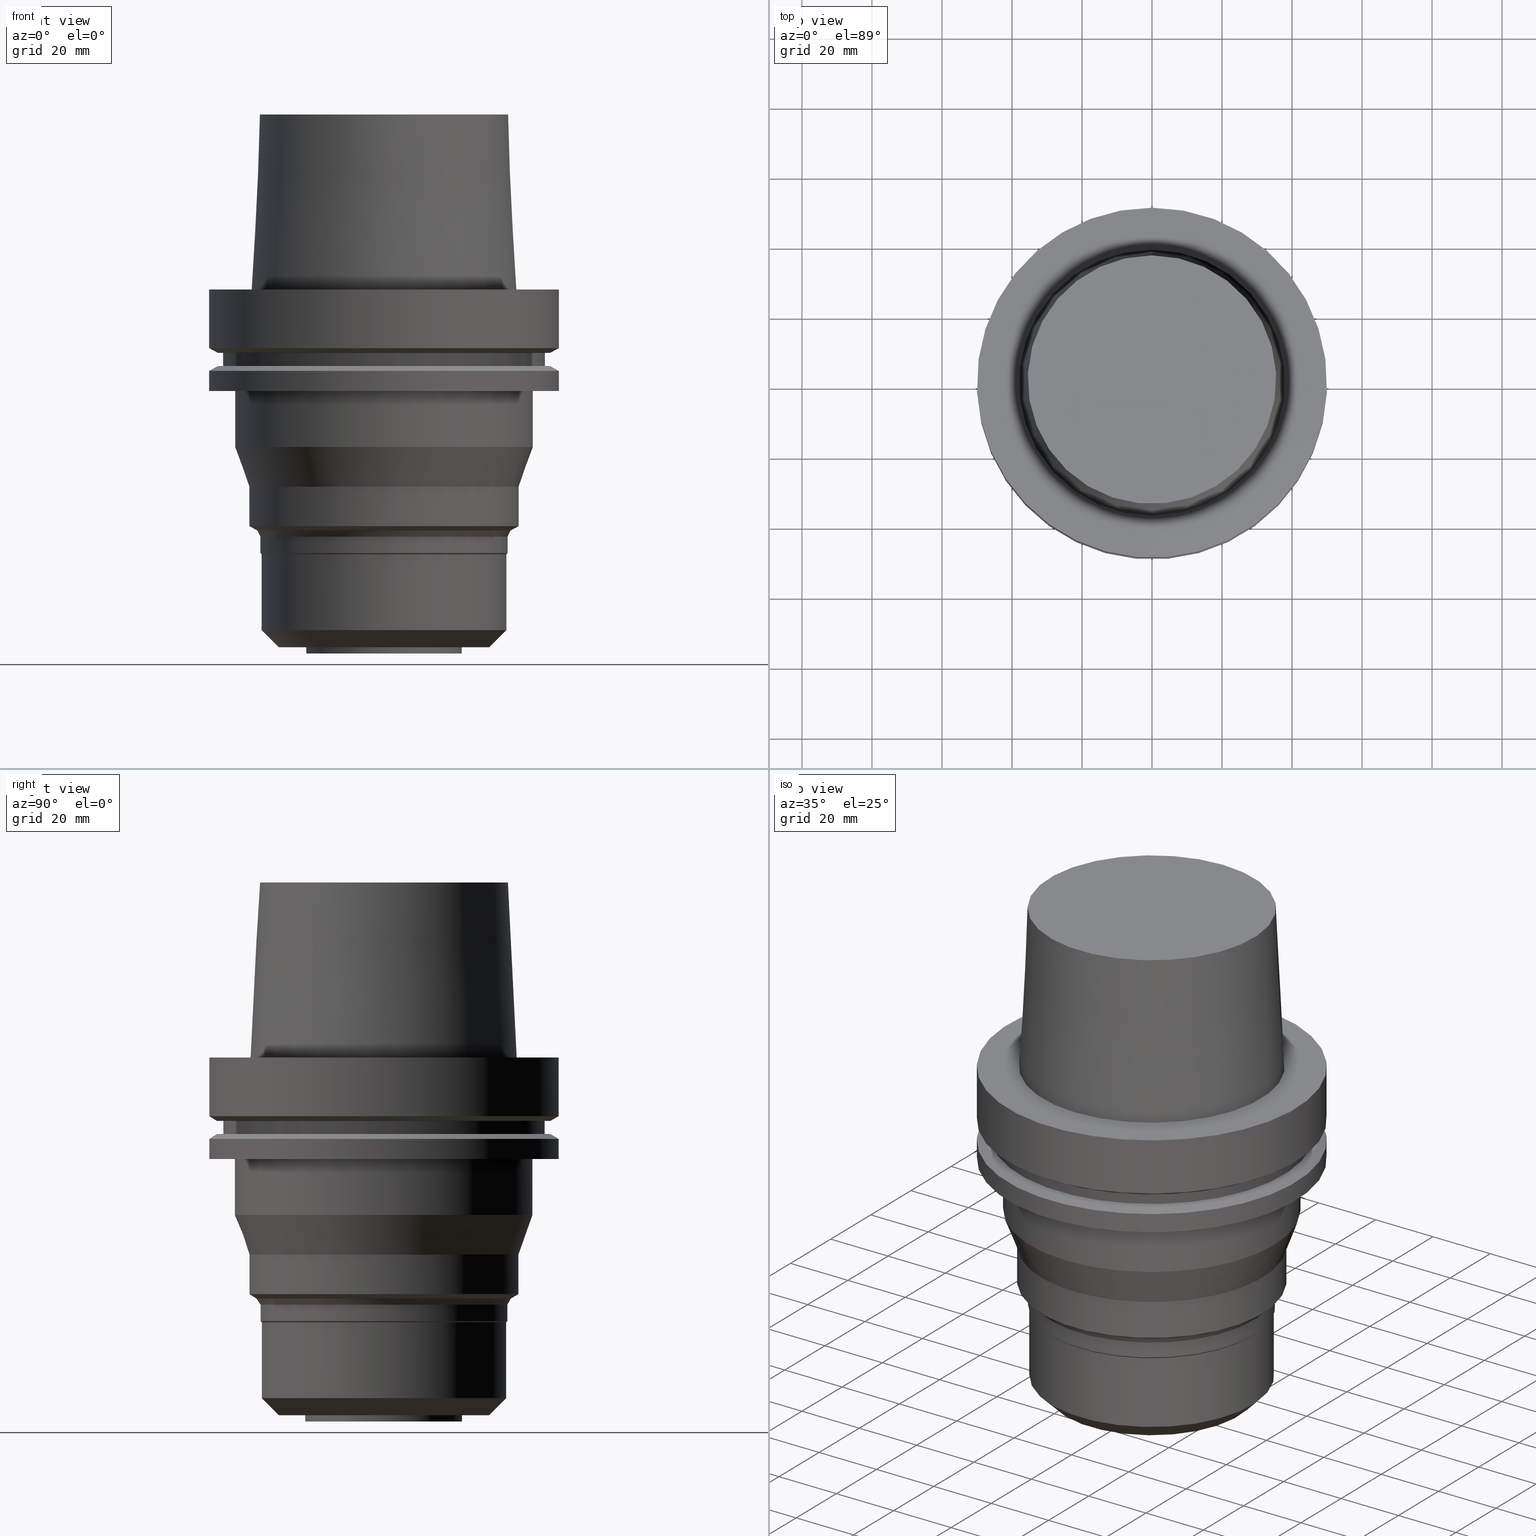
[diagram: canonical four-view strip — front | top / right | iso, engineering-drawing reading convention]
A machine part, canonical four-view strip (front | top / right | iso — engineering-drawing reading convention). The complete STEP part file that produces these views, byte-faithful:
ISO-10303-21;
HEADER;
FILE_DESCRIPTION((''),'1');
FILE_NAME('V:/90_\X2\53D65F9730C730FC30BF\X0\/00_\X2\6DE18DEF30C730FC30BF\X0\/ALL/HSK-BKUS\X2\52A05DE556F3\X0\_201801/HSK-A100-MEGADS/HSK-A100-MEGA1.000DS-4.stp','2018-02-01T04:48:47',(''),(''),'Spatial Interop R21 SP3','Kubotek KeyCreator 2011 V10.0.2 (22737)',' ');
FILE_SCHEMA(('automotive_design'));
ENDSEC;
DATA;
#1=MECHANICAL_DESIGN_GEOMETRIC_PRESENTATION_REPRESENTATION(' ',(#10,#11,#12,#13,#14,#15,#16,#17,#18,#19,#20,#21,#22,#23,#24,#25,#26,#27,#28,#29,#30,#31,#32,#33,#34,#35,#36,#37,#38,#39,#40,#41,#42,#43,#44,#45,#46,#47,#48,#49,#50,#51,#52,#53,#54,#55),#6);
#2=PRODUCT_DEFINITION_CONTEXT('',#56,'design');
#3=APPLICATION_PROTOCOL_DEFINITION('INTERNATIONAL STANDARD','automotive_design',1994,#56);
#4=PRODUCT_CATEGORY_RELATIONSHIP('NONE','NONE',#57,#58);
#5=SHAPE_DEFINITION_REPRESENTATION(#59,#60);
#6= (GEOMETRIC_REPRESENTATION_CONTEXT(3)GLOBAL_UNCERTAINTY_ASSIGNED_CONTEXT((#63))GLOBAL_UNIT_ASSIGNED_CONTEXT((#65,#66,#67))REPRESENTATION_CONTEXT('NONE','WORKSPACE'));
#10=STYLED_ITEM('',(#69,#70),#71);
#11=STYLED_ITEM('',(#72,#73),#74);
#12=STYLED_ITEM('',(#75,#76),#77);
#13=STYLED_ITEM('',(#78),#79);
#14=STYLED_ITEM('',(#80,#81),#82);
#15=STYLED_ITEM('',(#83,#84),#85);
#16=STYLED_ITEM('',(#86,#87),#88);
#17=STYLED_ITEM('',(#89,#90),#91);
#18=STYLED_ITEM('',(#92,#93),#94);
#19=STYLED_ITEM('',(#95),#96);
#20=STYLED_ITEM('',(#97,#98),#99);
#21=STYLED_ITEM('',(#100),#101);
#22=STYLED_ITEM('',(#102,#103),#104);
#23=STYLED_ITEM('',(#105),#106);
#24=STYLED_ITEM('',(#107),#108);
#25=STYLED_ITEM('',(#109,#110),#111);
#26=STYLED_ITEM('',(#112),#113);
#27=STYLED_ITEM('',(#114,#115),#116);
#28=STYLED_ITEM('',(#117,#118),#119);
#29=STYLED_ITEM('',(#120,#121),#122);
#30=STYLED_ITEM('',(#123),#124);
#31=STYLED_ITEM('',(#125),#126);
#32=STYLED_ITEM('',(#127,#128),#129);
#33=STYLED_ITEM('',(#130,#131),#132);
#34=STYLED_ITEM('',(#133,#134),#135);
#35=STYLED_ITEM('',(#136,#137),#138);
#36=STYLED_ITEM('',(#139,#140),#141);
#37=STYLED_ITEM('',(#142),#143);
#38=STYLED_ITEM('',(#144),#145);
#39=STYLED_ITEM('',(#146),#147);
#40=STYLED_ITEM('',(#148),#149);
#41=STYLED_ITEM('',(#150),#151);
#42=STYLED_ITEM('',(#152,#153),#154);
#43=STYLED_ITEM('',(#155),#156);
#44=STYLED_ITEM('',(#157),#158);
#45=STYLED_ITEM('',(#159,#160),#161);
#46=STYLED_ITEM('',(#162),#163);
#47=STYLED_ITEM('',(#164),#165);
#48=STYLED_ITEM('',(#166,#167),#168);
#49=STYLED_ITEM('',(#169,#170),#171);
#50=STYLED_ITEM('',(#172),#173);
#51=STYLED_ITEM('',(#174),#175);
#52=STYLED_ITEM('',(#176),#177);
#53=STYLED_ITEM('',(#178),#179);
#54=STYLED_ITEM('',(#180),#181);
#55=STYLED_ITEM('',(#182,#183),#184);
#56=APPLICATION_CONTEXT(' ');
#57=PRODUCT_CATEGORY('part','NONE');
#58=PRODUCT_RELATED_PRODUCT_CATEGORY('detail',' ',(#185));
#59=PRODUCT_DEFINITION_SHAPE('NONE','NONE',#186);
#60=ADVANCED_BREP_SHAPE_REPRESENTATION('Unnamed[1]',(#99,#187),#6);
#63=UNCERTAINTY_MEASURE_WITH_UNIT(LENGTH_MEASURE(1.0E-006),#65,'','');
#65= (CONVERSION_BASED_UNIT('MILLIMETRE',#190)LENGTH_UNIT()NAMED_UNIT(#193));
#66= (NAMED_UNIT(#195)PLANE_ANGLE_UNIT()SI_UNIT($,.RADIAN.));
#67= (NAMED_UNIT(#195)SOLID_ANGLE_UNIT()SI_UNIT($,.STERADIAN.));
#69=PRESENTATION_STYLE_ASSIGNMENT((#201));
#70=PRESENTATION_STYLE_ASSIGNMENT((#202));
#71=ADVANCED_FACE('Unnamed[1]',(#203,#204),#205,.T.);
#72=PRESENTATION_STYLE_ASSIGNMENT((#206));
#73=PRESENTATION_STYLE_ASSIGNMENT((#207));
#74=ADVANCED_FACE('Unnamed[1]',(#208,#209),#210,.T.);
#75=PRESENTATION_STYLE_ASSIGNMENT((#211));
#76=PRESENTATION_STYLE_ASSIGNMENT((#212));
#77=ADVANCED_FACE('Unnamed[1]',(#213,#214),#215,.T.);
#78=PRESENTATION_STYLE_ASSIGNMENT((#216));
#79=EDGE_CURVE('Unnamed[1]',#217,#217,#218,.T.);
#80=PRESENTATION_STYLE_ASSIGNMENT((#219));
#81=PRESENTATION_STYLE_ASSIGNMENT((#220));
#82=ADVANCED_FACE('Unnamed[1]',(#221,#222),#223,.T.);
#83=PRESENTATION_STYLE_ASSIGNMENT((#224));
#84=PRESENTATION_STYLE_ASSIGNMENT((#225));
#85=ADVANCED_FACE('Unnamed[1]',(#226,#227),#228,.T.);
#86=PRESENTATION_STYLE_ASSIGNMENT((#229));
#87=PRESENTATION_STYLE_ASSIGNMENT((#230));
#88=ADVANCED_FACE('Unnamed[1]',(#231,#232),#233,.T.);
#89=PRESENTATION_STYLE_ASSIGNMENT((#234));
#90=PRESENTATION_STYLE_ASSIGNMENT((#235));
#91=ADVANCED_FACE('Unnamed[1]',(#236,#237),#238,.T.);
#92=PRESENTATION_STYLE_ASSIGNMENT((#239));
#93=PRESENTATION_STYLE_ASSIGNMENT((#240));
#94=ADVANCED_FACE('Unnamed[1]',(#241,#242),#243,.T.);
#95=PRESENTATION_STYLE_ASSIGNMENT((#244));
#96=EDGE_CURVE('Unnamed[1]',#245,#245,#246,.T.);
#97=PRESENTATION_STYLE_ASSIGNMENT((#247));
#98=PRESENTATION_STYLE_ASSIGNMENT((#248));
#99=MANIFOLD_SOLID_BREP('Unnamed[1]',#249);
#100=PRESENTATION_STYLE_ASSIGNMENT((#250));
#101=EDGE_CURVE('Unnamed[1]',#251,#251,#252,.T.);
#102=PRESENTATION_STYLE_ASSIGNMENT((#253));
#103=PRESENTATION_STYLE_ASSIGNMENT((#254));
#104=ADVANCED_FACE('Unnamed[1]',(#255),#256,.T.);
#105=PRESENTATION_STYLE_ASSIGNMENT((#257));
#106=EDGE_CURVE('Unnamed[1]',#258,#258,#259,.T.);
#107=PRESENTATION_STYLE_ASSIGNMENT((#260));
#108=EDGE_CURVE('Unnamed[1]',#261,#261,#262,.T.);
#109=PRESENTATION_STYLE_ASSIGNMENT((#263));
#110=PRESENTATION_STYLE_ASSIGNMENT((#264));
#111=ADVANCED_FACE('Unnamed[1]',(#265),#266,.T.);
#112=PRESENTATION_STYLE_ASSIGNMENT((#267));
#113=EDGE_CURVE('Unnamed[1]',#268,#268,#269,.T.);
#114=PRESENTATION_STYLE_ASSIGNMENT((#270));
#115=PRESENTATION_STYLE_ASSIGNMENT((#271));
#116=ADVANCED_FACE('Unnamed[1]',(#272,#273),#274,.T.);
#117=PRESENTATION_STYLE_ASSIGNMENT((#275));
#118=PRESENTATION_STYLE_ASSIGNMENT((#276));
#119=ADVANCED_FACE('Unnamed[1]',(#277,#278),#279,.T.);
#120=PRESENTATION_STYLE_ASSIGNMENT((#280));
#121=PRESENTATION_STYLE_ASSIGNMENT((#281));
#122=ADVANCED_FACE('Unnamed[1]',(#282,#283),#284,.T.);
#123=PRESENTATION_STYLE_ASSIGNMENT((#285));
#124=EDGE_CURVE('Unnamed[1]',#286,#286,#287,.T.);
#125=PRESENTATION_STYLE_ASSIGNMENT((#288));
#126=EDGE_CURVE('Unnamed[1]',#289,#289,#290,.T.);
#127=PRESENTATION_STYLE_ASSIGNMENT((#291));
#128=PRESENTATION_STYLE_ASSIGNMENT((#292));
#129=ADVANCED_FACE('Unnamed[1]',(#293,#294),#295,.T.);
#130=PRESENTATION_STYLE_ASSIGNMENT((#296));
#131=PRESENTATION_STYLE_ASSIGNMENT((#297));
#132=ADVANCED_FACE('Unnamed[1]',(#298,#299),#300,.T.);
#133=PRESENTATION_STYLE_ASSIGNMENT((#301));
#134=PRESENTATION_STYLE_ASSIGNMENT((#302));
#135=ADVANCED_FACE('Unnamed[1]',(#303,#304),#305,.T.);
#136=PRESENTATION_STYLE_ASSIGNMENT((#306));
#137=PRESENTATION_STYLE_ASSIGNMENT((#307));
#138=ADVANCED_FACE('Unnamed[1]',(#308,#309),#310,.T.);
#139=PRESENTATION_STYLE_ASSIGNMENT((#311));
#140=PRESENTATION_STYLE_ASSIGNMENT((#312));
#141=ADVANCED_FACE('Unnamed[1]',(#313,#314),#315,.T.);
#142=PRESENTATION_STYLE_ASSIGNMENT((#316));
#143=EDGE_CURVE('Unnamed[1]',#317,#317,#318,.T.);
#144=PRESENTATION_STYLE_ASSIGNMENT((#319));
#145=EDGE_CURVE('Unnamed[1]',#320,#320,#321,.T.);
#146=PRESENTATION_STYLE_ASSIGNMENT((#322));
#147=EDGE_CURVE('Unnamed[1]',#323,#323,#324,.T.);
#148=PRESENTATION_STYLE_ASSIGNMENT((#325));
#149=EDGE_CURVE('Unnamed[1]',#326,#326,#327,.T.);
#150=PRESENTATION_STYLE_ASSIGNMENT((#328));
#151=EDGE_CURVE('Unnamed[1]',#329,#329,#330,.T.);
#152=PRESENTATION_STYLE_ASSIGNMENT((#331));
#153=PRESENTATION_STYLE_ASSIGNMENT((#332));
#154=ADVANCED_FACE('Unnamed[1]',(#333,#334),#335,.T.);
#155=PRESENTATION_STYLE_ASSIGNMENT((#336));
#156=EDGE_CURVE('Unnamed[1]',#337,#337,#338,.T.);
#157=PRESENTATION_STYLE_ASSIGNMENT((#339));
#158=EDGE_CURVE('Unnamed[1]',#340,#340,#341,.T.);
#159=PRESENTATION_STYLE_ASSIGNMENT((#342));
#160=PRESENTATION_STYLE_ASSIGNMENT((#343));
#161=ADVANCED_FACE('Unnamed[1]',(#344,#345),#346,.T.);
#162=PRESENTATION_STYLE_ASSIGNMENT((#347));
#163=EDGE_CURVE('Unnamed[1]',#348,#348,#349,.T.);
#164=PRESENTATION_STYLE_ASSIGNMENT((#350));
#165=EDGE_CURVE('Unnamed[1]',#351,#351,#352,.T.);
#166=PRESENTATION_STYLE_ASSIGNMENT((#353));
#167=PRESENTATION_STYLE_ASSIGNMENT((#354));
#168=ADVANCED_FACE('Unnamed[1]',(#355,#356),#357,.T.);
#169=PRESENTATION_STYLE_ASSIGNMENT((#358));
#170=PRESENTATION_STYLE_ASSIGNMENT((#359));
#171=ADVANCED_FACE('Unnamed[1]',(#360,#361),#362,.T.);
#172=PRESENTATION_STYLE_ASSIGNMENT((#363));
#173=EDGE_CURVE('Unnamed[1]',#364,#364,#365,.T.);
#174=PRESENTATION_STYLE_ASSIGNMENT((#366));
#175=EDGE_CURVE('Unnamed[1]',#367,#367,#368,.T.);
#176=PRESENTATION_STYLE_ASSIGNMENT((#369));
#177=EDGE_CURVE('Unnamed[1]',#370,#370,#371,.T.);
#178=PRESENTATION_STYLE_ASSIGNMENT((#372));
#179=EDGE_CURVE('Unnamed[1]',#373,#373,#374,.T.);
#180=PRESENTATION_STYLE_ASSIGNMENT((#375));
#181=EDGE_CURVE('Unnamed[1]',#376,#376,#377,.T.);
#182=PRESENTATION_STYLE_ASSIGNMENT((#378));
#183=PRESENTATION_STYLE_ASSIGNMENT((#379));
#184=ADVANCED_FACE('Unnamed[1]',(#380,#381),#382,.T.);
#185=PRODUCT('Unnamed[1]','Unnamed[1]','PART-Unnamed[1]-DESC',(#383));
#186=PRODUCT_DEFINITION('NONE','NONE',#384,#2);
#187=AXIS2_PLACEMENT_3D('',#385,#386,#387);
#190=LENGTH_MEASURE_WITH_UNIT(LENGTH_MEASURE(1.0),#388);
#193=DIMENSIONAL_EXPONENTS(1.0,0.0,0.0,0.0,0.0,0.0,0.0);
#195=DIMENSIONAL_EXPONENTS(0.0,0.0,0.0,0.0,0.0,0.0,0.0);
#201=SURFACE_STYLE_USAGE(.BOTH.,#389);
#202=CURVE_STYLE('',#390,POSITIVE_LENGTH_MEASURE(1000.0),#391);
#203=FACE_BOUND('',#392,.T.);
#204=FACE_OUTER_BOUND('',#393,.T.);
#205=PLANE('',#394);
#206=SURFACE_STYLE_USAGE(.BOTH.,#395);
#207=CURVE_STYLE('',#396,POSITIVE_LENGTH_MEASURE(1000.0),#397);
#208=FACE_BOUND('',#398,.T.);
#209=FACE_BOUND('',#399,.T.);
#210=CYLINDRICAL_SURFACE('',#400,50.0);
#211=SURFACE_STYLE_USAGE(.BOTH.,#401);
#212=CURVE_STYLE('',#402,POSITIVE_LENGTH_MEASURE(1000.0),#403);
#213=FACE_BOUND('',#404,.T.);
#214=FACE_BOUND('',#405,.T.);
#215=CONICAL_SURFACE('',#406,35.8499999999999,0.523598775598284);
#216=CURVE_STYLE('',#407,POSITIVE_LENGTH_MEASURE(1000.0),#408);
#217=VERTEX_POINT('',#409);
#218=CIRCLE('',#410,46.0);
#219=SURFACE_STYLE_USAGE(.BOTH.,#411);
#220=CURVE_STYLE('',#412,POSITIVE_LENGTH_MEASURE(1000.0),#413);
#221=FACE_BOUND('',#414,.T.);
#222=FACE_BOUND('',#415,.T.);
#223=CYLINDRICAL_SURFACE('',#416,50.0);
#224=SURFACE_STYLE_USAGE(.BOTH.,#417);
#225=CURVE_STYLE('',#418,POSITIVE_LENGTH_MEASURE(1000.0),#419);
#226=FACE_BOUND('',#420,.T.);
#227=FACE_BOUND('',#421,.T.);
#228=CYLINDRICAL_SURFACE('',#422,35.3499999999999);
#229=SURFACE_STYLE_USAGE(.BOTH.,#423);
#230=CURVE_STYLE('',#424,POSITIVE_LENGTH_MEASURE(1000.0),#425);
#231=FACE_BOUND('',#426,.T.);
#232=FACE_BOUND('',#427,.T.);
#233=CONICAL_SURFACE('',#428,48.81129763,1.04719755328238);
#234=SURFACE_STYLE_USAGE(.BOTH.,#429);
#235=CURVE_STYLE('',#430,POSITIVE_LENGTH_MEASURE(1000.0),#431);
#236=FACE_BOUND('',#432,.T.);
#237=FACE_BOUND('',#433,.T.);
#238=CYLINDRICAL_SURFACE('',#434,38.5000000000002);
#239=SURFACE_STYLE_USAGE(.BOTH.,#435);
#240=CURVE_STYLE('',#436,POSITIVE_LENGTH_MEASURE(1000.0),#437);
#241=FACE_BOUND('',#438,.T.);
#242=FACE_BOUND('',#439,.T.);
#243=CYLINDRICAL_SURFACE('',#440,35.0);
#244=CURVE_STYLE('',#441,POSITIVE_LENGTH_MEASURE(1000.0),#442);
#245=VERTEX_POINT('',#443);
#246=CIRCLE('',#444,47.62259526);
#247=SURFACE_STYLE_USAGE(.BOTH.,#445);
#248=CURVE_STYLE('',#446,POSITIVE_LENGTH_MEASURE(1000.0),#447);
#249=CLOSED_SHELL('',(#111,#154,#184,#74,#161,#71,#168,#138,#88,#82,#116,#135,#132,#91,#122,#77,#85,#171,#94,#141,#129,#119,#104));
#250=CURVE_STYLE('',#448,POSITIVE_LENGTH_MEASURE(1000.0),#449);
#251=VERTEX_POINT('',#450);
#252=CIRCLE('',#451,22.3848075809216);
#253=SURFACE_STYLE_USAGE(.BOTH.,#452);
#254=CURVE_STYLE('',#453,POSITIVE_LENGTH_MEASURE(1000.0),#454);
#255=FACE_OUTER_BOUND('',#455,.T.);
#256=PLANE('',#456);
#257=CURVE_STYLE('',#457,POSITIVE_LENGTH_MEASURE(1000.0),#458);
#258=VERTEX_POINT('',#459);
#259=CIRCLE('',#460,42.5);
#260=CURVE_STYLE('',#461,POSITIVE_LENGTH_MEASURE(1000.0),#462);
#261=VERTEX_POINT('',#463);
#262=CIRCLE('',#464,37.9999999999349);
#263=SURFACE_STYLE_USAGE(.BOTH.,#465);
#264=CURVE_STYLE('',#466,POSITIVE_LENGTH_MEASURE(1000.0),#467);
#265=FACE_OUTER_BOUND('',#468,.T.);
#266=PLANE('',#469);
#267=CURVE_STYLE('',#470,POSITIVE_LENGTH_MEASURE(1000.0),#471);
#268=VERTEX_POINT('',#472);
#269=CIRCLE('',#473,30.1253951904742);
#270=SURFACE_STYLE_USAGE(.BOTH.,#474);
#271=CURVE_STYLE('',#475,POSITIVE_LENGTH_MEASURE(1000.0),#476);
#272=FACE_BOUND('',#477,.T.);
#273=FACE_OUTER_BOUND('',#478,.T.);
#274=PLANE('',#479);
#275=SURFACE_STYLE_USAGE(.BOTH.,#480);
#276=CURVE_STYLE('',#481,POSITIVE_LENGTH_MEASURE(1000.0),#482);
#277=FACE_BOUND('',#483,.T.);
#278=FACE_BOUND('',#484,.T.);
#279=CYLINDRICAL_SURFACE('',#485,22.3848075809217);
#280=SURFACE_STYLE_USAGE(.BOTH.,#486);
#281=CURVE_STYLE('',#487,POSITIVE_LENGTH_MEASURE(1000.0),#488);
#282=FACE_BOUND('',#489,.T.);
#283=FACE_BOUND('',#490,.T.);
#284=CONICAL_SURFACE('',#491,37.4250000000001,1.04719755119655);
#285=CURVE_STYLE('',#492,POSITIVE_LENGTH_MEASURE(1000.0),#493);
#286=VERTEX_POINT('',#494);
#287=CIRCLE('',#495,50.0);
#288=CURVE_STYLE('',#496,POSITIVE_LENGTH_MEASURE(1000.0),#497);
#289=VERTEX_POINT('',#498);
#290=CIRCLE('',#499,46.0);
#291=SURFACE_STYLE_USAGE(.BOTH.,#500);
#292=CURVE_STYLE('',#501,POSITIVE_LENGTH_MEASURE(1000.0),#502);
#293=FACE_BOUND('',#503,.T.);
#294=FACE_OUTER_BOUND('',#504,.T.);
#295=PLANE('',#505);
#296=SURFACE_STYLE_USAGE(.BOTH.,#506);
#297=CURVE_STYLE('',#507,POSITIVE_LENGTH_MEASURE(1000.0),#508);
#298=FACE_BOUND('',#509,.T.);
#299=FACE_BOUND('',#510,.T.);
#300=CONICAL_SURFACE('',#511,40.5,0.340218111644686);
#301=SURFACE_STYLE_USAGE(.BOTH.,#512);
#302=CURVE_STYLE('',#513,POSITIVE_LENGTH_MEASURE(1000.0),#514);
#303=FACE_BOUND('',#515,.T.);
#304=FACE_BOUND('',#516,.T.);
#305=CYLINDRICAL_SURFACE('',#517,42.5);
#306=SURFACE_STYLE_USAGE(.BOTH.,#518);
#307=CURVE_STYLE('',#519,POSITIVE_LENGTH_MEASURE(1000.0),#520);
#308=FACE_OUTER_BOUND('',#521,.T.);
#309=FACE_BOUND('',#522,.T.);
#310=PLANE('',#523);
#311=SURFACE_STYLE_USAGE(.BOTH.,#524);
#312=CURVE_STYLE('',#525,POSITIVE_LENGTH_MEASURE(1000.0),#526);
#313=FACE_BOUND('',#527,.T.);
#314=FACE_BOUND('',#528,.T.);
#315=CONICAL_SURFACE('',#529,32.5626975952371,0.785398163397444);
#316=CURVE_STYLE('',#530,POSITIVE_LENGTH_MEASURE(1000.0),#531);
#317=VERTEX_POINT('',#532);
#318=CIRCLE('',#533,47.62259526);
#319=CURVE_STYLE('',#534,POSITIVE_LENGTH_MEASURE(1000.0),#535);
#320=VERTEX_POINT('',#536);
#321=CIRCLE('',#537,50.0);
#322=CURVE_STYLE('',#538,POSITIVE_LENGTH_MEASURE(1000.0),#539);
#323=VERTEX_POINT('',#540);
#324=CIRCLE('',#541,35.5000000015618);
#325=CURVE_STYLE('',#542,POSITIVE_LENGTH_MEASURE(1000.0),#543);
#326=VERTEX_POINT('',#544);
#327=CIRCLE('',#545,38.5000000000001);
#328=CURVE_STYLE('',#546,POSITIVE_LENGTH_MEASURE(1000.0),#547);
#329=VERTEX_POINT('',#548);
#330=CIRCLE('',#549,35.3499999999999);
#331=SURFACE_STYLE_USAGE(.BOTH.,#550);
#332=CURVE_STYLE('',#551,POSITIVE_LENGTH_MEASURE(1000.0),#552);
#333=FACE_BOUND('',#553,.T.);
#334=FACE_BOUND('',#554,.T.);
#335=CONICAL_SURFACE('',#555,36.7500000007484,0.0499583956894843);
#336=CURVE_STYLE('',#556,POSITIVE_LENGTH_MEASURE(1000.0),#557);
#337=VERTEX_POINT('',#558);
#338=CIRCLE('',#559,38.5000000000003);
#339=CURVE_STYLE('',#560,POSITIVE_LENGTH_MEASURE(1000.0),#561);
#340=VERTEX_POINT('',#562);
#341=CIRCLE('',#563,35.3499999999999);
#342=SURFACE_STYLE_USAGE(.BOTH.,#564);
#343=CURVE_STYLE('',#565,POSITIVE_LENGTH_MEASURE(1000.0),#566);
#344=FACE_BOUND('',#567,.T.);
#345=FACE_BOUND('',#568,.T.);
#346=CONICAL_SURFACE('',#569,48.81129763,1.04719755328238);
#347=CURVE_STYLE('',#570,POSITIVE_LENGTH_MEASURE(1000.0),#571);
#348=VERTEX_POINT('',#572);
#349=CIRCLE('',#573,50.0);
#350=CURVE_STYLE('',#574,POSITIVE_LENGTH_MEASURE(1000.0),#575);
#351=VERTEX_POINT('',#576);
#352=CIRCLE('',#577,42.5);
#353=SURFACE_STYLE_USAGE(.BOTH.,#578);
#354=CURVE_STYLE('',#579,POSITIVE_LENGTH_MEASURE(1000.0),#580);
#355=FACE_BOUND('',#581,.T.);
#356=FACE_BOUND('',#582,.T.);
#357=CYLINDRICAL_SURFACE('',#583,46.0);
#358=SURFACE_STYLE_USAGE(.BOTH.,#584);
#359=CURVE_STYLE('',#585,POSITIVE_LENGTH_MEASURE(1000.0),#586);
#360=FACE_BOUND('',#587,.T.);
#361=FACE_BOUND('',#588,.T.);
#362=CONICAL_SURFACE('',#589,35.175,0.785398163398362);
#363=CURVE_STYLE('',#590,POSITIVE_LENGTH_MEASURE(1000.0),#591);
#364=VERTEX_POINT('',#592);
#365=CIRCLE('',#593,35.0000000000001);
#366=CURVE_STYLE('',#594,POSITIVE_LENGTH_MEASURE(1000.0),#595);
#367=VERTEX_POINT('',#596);
#368=CIRCLE('',#597,50.0);
#369=CURVE_STYLE('',#598,POSITIVE_LENGTH_MEASURE(1000.0),#599);
#370=VERTEX_POINT('',#600);
#371=CIRCLE('',#601,36.3499999999999);
#372=CURVE_STYLE('',#602,POSITIVE_LENGTH_MEASURE(1000.0),#603);
#373=VERTEX_POINT('',#604);
#374=CIRCLE('',#605,22.3848075809219);
#375=CURVE_STYLE('',#606,POSITIVE_LENGTH_MEASURE(1000.0),#607);
#376=VERTEX_POINT('',#608);
#377=CIRCLE('',#609,34.9999999999999);
#378=SURFACE_STYLE_USAGE(.BOTH.,#610);
#379=CURVE_STYLE('',#611,POSITIVE_LENGTH_MEASURE(1000.0),#612);
#380=FACE_OUTER_BOUND('',#613,.T.);
#381=FACE_BOUND('',#614,.T.);
#382=PLANE('',#615);
#383=PRODUCT_CONTEXT('',#56,'mechanical');
#384=PRODUCT_DEFINITION_FORMATION_WITH_SPECIFIED_SOURCE(' ','NONE',#185,.NOT_KNOWN.);
#385=CARTESIAN_POINT('',(0.0,0.0,0.0));
#386=DIRECTION('',(0.0,0.0,1.0));
#387=DIRECTION('',(1.0,0.0,0.0));
#388= (NAMED_UNIT(#193)LENGTH_UNIT()SI_UNIT(.MILLI.,.METRE.));
#389=SURFACE_SIDE_STYLE('',(#617));
#390=DRAUGHTING_PRE_DEFINED_CURVE_FONT('continuous');
#391=COLOUR_RGB('',0.0,1.0,0.0);
#392=EDGE_LOOP('',(#618));
#393=EDGE_LOOP('',(#619));
#394=AXIS2_PLACEMENT_3D('',#620,#621,#622);
#395=SURFACE_SIDE_STYLE('',(#623));
#396=DRAUGHTING_PRE_DEFINED_CURVE_FONT('continuous');
#397=COLOUR_RGB('',0.0,1.0,0.0);
#398=EDGE_LOOP('',(#624));
#399=EDGE_LOOP('',(#625));
#400=AXIS2_PLACEMENT_3D('',#626,#627,#628);
#401=SURFACE_SIDE_STYLE('',(#629));
#402=DRAUGHTING_PRE_DEFINED_CURVE_FONT('continuous');
#403=COLOUR_RGB('',0.0,1.0,0.0);
#404=EDGE_LOOP('',(#630));
#405=EDGE_LOOP('',(#631));
#406=AXIS2_PLACEMENT_3D('',#632,#633,#634);
#407=DRAUGHTING_PRE_DEFINED_CURVE_FONT('continuous');
#408=COLOUR_RGB('',0.0,1.0,0.0);
#409=CARTESIAN_POINT('',(1.33945743656742E-015,46.0,-21.875));
#410=AXIS2_PLACEMENT_3D('',#635,#636,#637);
#411=SURFACE_SIDE_STYLE('',(#638));
#412=DRAUGHTING_PRE_DEFINED_CURVE_FONT('continuous');
#413=COLOUR_RGB('',0.0,1.0,0.0);
#414=EDGE_LOOP('',(#639));
#415=EDGE_LOOP('',(#640));
#416=AXIS2_PLACEMENT_3D('',#641,#642,#643);
#417=SURFACE_SIDE_STYLE('',(#644));
#418=DRAUGHTING_PRE_DEFINED_CURVE_FONT('continuous');
#419=COLOUR_RGB('',0.0,1.0,0.0);
#420=EDGE_LOOP('',(#645));
#421=EDGE_LOOP('',(#646));
#422=AXIS2_PLACEMENT_3D('',#647,#648,#649);
#423=SURFACE_SIDE_STYLE('',(#650));
#424=DRAUGHTING_PRE_DEFINED_CURVE_FONT('continuous');
#425=COLOUR_RGB('',0.0,1.0,0.0);
#426=EDGE_LOOP('',(#651));
#427=EDGE_LOOP('',(#652));
#428=AXIS2_PLACEMENT_3D('',#653,#654,#655);
#429=SURFACE_SIDE_STYLE('',(#656));
#430=DRAUGHTING_PRE_DEFINED_CURVE_FONT('continuous');
#431=COLOUR_RGB('',0.0,1.0,0.0);
#432=EDGE_LOOP('',(#657));
#433=EDGE_LOOP('',(#658));
#434=AXIS2_PLACEMENT_3D('',#659,#660,#661);
#435=SURFACE_SIDE_STYLE('',(#662));
#436=DRAUGHTING_PRE_DEFINED_CURVE_FONT('continuous');
#437=COLOUR_RGB('',0.0,1.0,0.0);
#438=EDGE_LOOP('',(#663));
#439=EDGE_LOOP('',(#664));
#440=AXIS2_PLACEMENT_3D('',#665,#666,#667);
#441=DRAUGHTING_PRE_DEFINED_CURVE_FONT('continuous');
#442=COLOUR_RGB('',0.0,1.0,0.0);
#443=CARTESIAN_POINT('',(1.10983616172729E-015,47.62259526,-18.125));
#444=AXIS2_PLACEMENT_3D('',#668,#669,#670);
#445=SURFACE_SIDE_STYLE('',(#671));
#446=DRAUGHTING_PRE_DEFINED_CURVE_FONT('continuous');
#447=COLOUR_RGB('',0.0,1.0,0.0);
#448=DRAUGHTING_PRE_DEFINED_CURVE_FONT('continuous');
#449=COLOUR_RGB('',0.0,1.0,0.0);
#450=CARTESIAN_POINT('',(6.36816335556624E-015,22.3848075809216,-104.0));
#451=AXIS2_PLACEMENT_3D('',#672,#673,#674);
#452=SURFACE_SIDE_STYLE('',(#675));
#453=DRAUGHTING_PRE_DEFINED_CURVE_FONT('continuous');
#454=COLOUR_RGB('',0.0,1.0,0.0);
#455=EDGE_LOOP('',(#676));
#456=AXIS2_PLACEMENT_3D('',#677,#678,#679);
#457=DRAUGHTING_PRE_DEFINED_CURVE_FONT('continuous');
#458=COLOUR_RGB('',0.0,1.0,0.0);
#459=CARTESIAN_POINT('',(1.77573785876366E-015,42.5,-29.0));
#460=AXIS2_PLACEMENT_3D('',#680,#681,#682);
#461=DRAUGHTING_PRE_DEFINED_CURVE_FONT('continuous');
#462=COLOUR_RGB('',0.0,1.0,0.0);
#463=CARTESIAN_POINT('',(-3.3636548776863E-032,37.9999999999349,-2.44634216324803E-015));
#464=AXIS2_PLACEMENT_3D('',#683,#684,#685);
#465=SURFACE_SIDE_STYLE('',(#686));
#466=DRAUGHTING_PRE_DEFINED_CURVE_FONT('continuous');
#467=COLOUR_RGB('',0.0,1.0,0.0);
#468=EDGE_LOOP('',(#687));
#469=AXIS2_PLACEMENT_3D('',#688,#689,#690);
#470=DRAUGHTING_PRE_DEFINED_CURVE_FONT('continuous');
#471=COLOUR_RGB('',0.0,1.0,0.0);
#472=CARTESIAN_POINT('',(6.25794514364296E-015,30.1253951904742,-102.2));
#473=AXIS2_PLACEMENT_3D('',#691,#692,#693);
#474=SURFACE_SIDE_STYLE('',(#694));
#475=DRAUGHTING_PRE_DEFINED_CURVE_FONT('continuous');
#476=COLOUR_RGB('',0.0,1.0,0.0);
#477=EDGE_LOOP('',(#695));
#478=EDGE_LOOP('',(#696));
#479=AXIS2_PLACEMENT_3D('',#697,#698,#699);
#480=SURFACE_SIDE_STYLE('',(#700));
#481=DRAUGHTING_PRE_DEFINED_CURVE_FONT('continuous');
#482=COLOUR_RGB('',0.0,1.0,0.0);
#483=EDGE_LOOP('',(#701));
#484=EDGE_LOOP('',(#702));
#485=AXIS2_PLACEMENT_3D('',#703,#704,#705);
#486=SURFACE_SIDE_STYLE('',(#706));
#487=DRAUGHTING_PRE_DEFINED_CURVE_FONT('continuous');
#488=COLOUR_RGB('',0.0,1.0,0.0);
#489=EDGE_LOOP('',(#707));
#490=EDGE_LOOP('',(#708));
#491=AXIS2_PLACEMENT_3D('',#709,#710,#711);
#492=DRAUGHTING_PRE_DEFINED_CURVE_FONT('continuous');
#493=COLOUR_RGB('',0.0,1.0,0.0);
#494=CARTESIAN_POINT('',(1.77573785876366E-015,50.0,-29.0));
#495=AXIS2_PLACEMENT_3D('',#712,#713,#714);
#496=DRAUGHTING_PRE_DEFINED_CURVE_FONT('continuous');
#497=COLOUR_RGB('',0.0,1.0,0.0);
#498=CARTESIAN_POINT('',(1.10983616172729E-015,46.0,-18.125));
#499=AXIS2_PLACEMENT_3D('',#715,#716,#717);
#500=SURFACE_SIDE_STYLE('',(#718));
#501=DRAUGHTING_PRE_DEFINED_CURVE_FONT('continuous');
#502=COLOUR_RGB('',0.0,1.0,0.0);
#503=EDGE_LOOP('',(#719));
#504=EDGE_LOOP('',(#720));
#505=AXIS2_PLACEMENT_3D('',#721,#722,#723);
#506=SURFACE_SIDE_STYLE('',(#724));
#507=DRAUGHTING_PRE_DEFINED_CURVE_FONT('continuous');
#508=COLOUR_RGB('',0.0,1.0,0.0);
#509=EDGE_LOOP('',(#725));
#510=EDGE_LOOP('',(#726));
#511=AXIS2_PLACEMENT_3D('',#727,#728,#729);
#512=SURFACE_SIDE_STYLE('',(#730));
#513=DRAUGHTING_PRE_DEFINED_CURVE_FONT('continuous');
#514=COLOUR_RGB('',0.0,1.0,0.0);
#515=EDGE_LOOP('',(#731));
#516=EDGE_LOOP('',(#732));
#517=AXIS2_PLACEMENT_3D('',#733,#734,#735);
#518=SURFACE_SIDE_STYLE('',(#736));
#519=DRAUGHTING_PRE_DEFINED_CURVE_FONT('continuous');
#520=COLOUR_RGB('',0.0,1.0,0.0);
#521=EDGE_LOOP('',(#737));
#522=EDGE_LOOP('',(#738));
#523=AXIS2_PLACEMENT_3D('',#739,#740,#741);
#524=SURFACE_SIDE_STYLE('',(#742));
#525=DRAUGHTING_PRE_DEFINED_CURVE_FONT('continuous');
#526=COLOUR_RGB('',0.0,1.0,0.0);
#527=EDGE_LOOP('',(#743));
#528=EDGE_LOOP('',(#744));
#529=AXIS2_PLACEMENT_3D('',#745,#746,#747);
#530=DRAUGHTING_PRE_DEFINED_CURVE_FONT('continuous');
#531=COLOUR_RGB('',0.0,1.0,0.0);
#532=CARTESIAN_POINT('',(1.33945743656742E-015,47.62259526,-21.875));
#533=AXIS2_PLACEMENT_3D('',#748,#749,#750);
#534=DRAUGHTING_PRE_DEFINED_CURVE_FONT('continuous');
#535=COLOUR_RGB('',0.0,1.0,0.0);
#536=CARTESIAN_POINT('',(-1.81547968506605E-031,50.0,-9.76766004263236E-016));
#537=AXIS2_PLACEMENT_3D('',#751,#752,#753);
#538=DRAUGHTING_PRE_DEFINED_CURVE_FONT('continuous');
#539=COLOUR_RGB('',0.0,1.0,0.0);
#540=CARTESIAN_POINT('',(-3.06161699786838E-015,35.5000000015618,50.0));
#541=AXIS2_PLACEMENT_3D('',#754,#755,#756);
#542=DRAUGHTING_PRE_DEFINED_CURVE_FONT('continuous');
#543=COLOUR_RGB('',0.0,1.0,0.0);
#544=CARTESIAN_POINT('',(3.44738073959978E-015,38.5000000000001,-56.2999999999997));
#545=AXIS2_PLACEMENT_3D('',#757,#758,#759);
#546=DRAUGHTING_PRE_DEFINED_CURVE_FONT('continuous');
#547=COLOUR_RGB('',0.0,1.0,0.0);
#548=CARTESIAN_POINT('',(4.32194724702722E-015,35.3499999999999,-70.5827549630854));
#549=AXIS2_PLACEMENT_3D('',#760,#761,#762);
#550=SURFACE_SIDE_STYLE('',(#763));
#551=DRAUGHTING_PRE_DEFINED_CURVE_FONT('continuous');
#552=COLOUR_RGB('',0.0,1.0,0.0);
#553=EDGE_LOOP('',(#764));
#554=EDGE_LOOP('',(#765));
#555=AXIS2_PLACEMENT_3D('',#766,#767,#768);
#556=DRAUGHTING_PRE_DEFINED_CURVE_FONT('continuous');
#557=COLOUR_RGB('',0.0,1.0,0.0);
#558=CARTESIAN_POINT('',(4.1398818310461E-015,38.5000000000003,-67.6094010767585));
#559=AXIS2_PLACEMENT_3D('',#769,#770,#771);
#560=DRAUGHTING_PRE_DEFINED_CURVE_FONT('continuous');
#561=COLOUR_RGB('',0.0,1.0,0.0);
#562=CARTESIAN_POINT('',(4.61079519878978E-015,35.3499999999999,-75.3));
#563=AXIS2_PLACEMENT_3D('',#772,#773,#774);
#564=SURFACE_SIDE_STYLE('',(#775));
#565=DRAUGHTING_PRE_DEFINED_CURVE_FONT('continuous');
#566=COLOUR_RGB('',0.0,1.0,0.0);
#567=EDGE_LOOP('',(#776));
#568=EDGE_LOOP('',(#777));
#569=AXIS2_PLACEMENT_3D('',#778,#779,#780);
#570=DRAUGHTING_PRE_DEFINED_CURVE_FONT('continuous');
#571=COLOUR_RGB('',0.0,1.0,0.0);
#572=CARTESIAN_POINT('',(1.0257889421431E-015,50.0,-16.75240474));
#573=AXIS2_PLACEMENT_3D('',#781,#782,#783);
#574=DRAUGHTING_PRE_DEFINED_CURVE_FONT('continuous');
#575=COLOUR_RGB('',0.0,1.0,0.0);
#576=CARTESIAN_POINT('',(2.75545529808154E-015,42.5,-45.0));
#577=AXIS2_PLACEMENT_3D('',#784,#785,#786);
#578=SURFACE_SIDE_STYLE('',(#787));
#579=DRAUGHTING_PRE_DEFINED_CURVE_FONT('continuous');
#580=COLOUR_RGB('',0.0,1.0,0.0);
#581=EDGE_LOOP('',(#788));
#582=EDGE_LOOP('',(#789));
#583=AXIS2_PLACEMENT_3D('',#790,#791,#792);
#584=SURFACE_SIDE_STYLE('',(#793));
#585=DRAUGHTING_PRE_DEFINED_CURVE_FONT('continuous');
#586=COLOUR_RGB('',0.0,1.0,0.0);
#587=EDGE_LOOP('',(#794));
#588=EDGE_LOOP('',(#795));
#589=AXIS2_PLACEMENT_3D('',#796,#797,#798);
#590=DRAUGHTING_PRE_DEFINED_CURVE_FONT('continuous');
#591=COLOUR_RGB('',0.0,1.0,0.0);
#592=CARTESIAN_POINT('',(4.63222651777481E-015,35.0000000000001,-75.6499999999992));
#593=AXIS2_PLACEMENT_3D('',#799,#800,#801);
#594=DRAUGHTING_PRE_DEFINED_CURVE_FONT('continuous');
#595=COLOUR_RGB('',0.0,1.0,0.0);
#596=CARTESIAN_POINT('',(1.42350465615161E-015,50.0,-23.24759526));
#597=AXIS2_PLACEMENT_3D('',#802,#803,#804);
#598=DRAUGHTING_PRE_DEFINED_CURVE_FONT('continuous');
#599=COLOUR_RGB('',0.0,1.0,0.0);
#600=CARTESIAN_POINT('',(4.21588972315474E-015,36.3499999999999,-68.8507041555166));
#601=AXIS2_PLACEMENT_3D('',#805,#806,#807);
#602=DRAUGHTING_PRE_DEFINED_CURVE_FONT('continuous');
#603=COLOUR_RGB('',0.0,1.0,0.0);
#604=CARTESIAN_POINT('',(6.25794514364296E-015,22.3848075809219,-102.2));
#605=AXIS2_PLACEMENT_3D('',#808,#809,#810);
#606=DRAUGHTING_PRE_DEFINED_CURVE_FONT('continuous');
#607=COLOUR_RGB('',0.0,1.0,0.0);
#608=CARTESIAN_POINT('',(5.95946168478826E-015,35.0,-97.325395190474));
#609=AXIS2_PLACEMENT_3D('',#811,#812,#813);
#610=SURFACE_SIDE_STYLE('',(#814));
#611=DRAUGHTING_PRE_DEFINED_CURVE_FONT('continuous');
#612=COLOUR_RGB('',0.0,1.0,0.0);
#613=EDGE_LOOP('',(#815));
#614=EDGE_LOOP('',(#816));
#615=AXIS2_PLACEMENT_3D('',#817,#818,#819);
#617=SURFACE_STYLE_FILL_AREA(#820);
#618=ORIENTED_EDGE('',*,*,#126,.F.);
#619=ORIENTED_EDGE('',*,*,#96,.T.);
#620=CARTESIAN_POINT('',(1.10983616172729E-015,46.81129763,-18.125));
#621=DIRECTION('',(6.12323399573677E-017,1.22464679914735E-016,-1.0));
#622=DIRECTION('',(-1.23259516440783E-032,1.0,1.22464679914735E-016));
#623=SURFACE_STYLE_FILL_AREA(#821);
#624=ORIENTED_EDGE('',*,*,#163,.F.);
#625=ORIENTED_EDGE('',*,*,#145,.T.);
#626=CARTESIAN_POINT('',(5.12894471071548E-016,1.0257889421431E-015,-8.37620236999999));
#627=DIRECTION('',(6.12323399573677E-017,1.22464679914735E-016,-1.0));
#628=DIRECTION('',(-1.23259516440783E-032,1.0,1.22464679914735E-016));
#629=SURFACE_STYLE_FILL_AREA(#822);
#630=ORIENTED_EDGE('',*,*,#151,.F.);
#631=ORIENTED_EDGE('',*,*,#177,.T.);
#632=CARTESIAN_POINT('',(4.26891848509098E-015,8.53783697018196E-015,-69.716729559301));
#633=DIRECTION('',(-6.12323399573677E-017,-1.22464679914735E-016,1.0));
#634=DIRECTION('',(-1.23259516440783E-032,1.0,1.22464679914735E-016));
#635=CARTESIAN_POINT('',(1.33945743656742E-015,2.67891487313484E-015,-21.875));
#636=DIRECTION('',(6.12323399573677E-017,1.22464679914735E-016,-1.0));
#637=DIRECTION('',(-1.23259516440783E-032,1.0,1.22464679914735E-016));
#638=SURFACE_STYLE_FILL_AREA(#823);
#639=ORIENTED_EDGE('',*,*,#124,.F.);
#640=ORIENTED_EDGE('',*,*,#175,.T.);
#641=CARTESIAN_POINT('',(1.59962125745764E-015,3.19924251491527E-015,-26.12379763));
#642=DIRECTION('',(6.12323399573677E-017,1.22464679914735E-016,-1.0));
#643=DIRECTION('',(-1.23259516440783E-032,1.0,1.22464679914735E-016));
#644=SURFACE_STYLE_FILL_AREA(#824);
#645=ORIENTED_EDGE('',*,*,#158,.F.);
#646=ORIENTED_EDGE('',*,*,#151,.T.);
#647=CARTESIAN_POINT('',(4.4663712229085E-015,8.93274244581701E-015,-72.9413774815427));
#648=DIRECTION('',(6.12323399573677E-017,1.22464679914735E-016,-1.0));
#649=DIRECTION('',(-1.23259516440783E-032,1.0,1.22464679914735E-016));
#650=SURFACE_STYLE_FILL_AREA(#825);
#651=ORIENTED_EDGE('',*,*,#175,.F.);
#652=ORIENTED_EDGE('',*,*,#143,.T.);
#653=CARTESIAN_POINT('',(1.38148104635951E-015,2.76296209271903E-015,-22.56129763));
#654=DIRECTION('',(6.12323399573677E-017,1.22464679914735E-016,-1.0));
#655=DIRECTION('',(-1.23259516440783E-032,1.0,1.22464679914735E-016));
#656=SURFACE_STYLE_FILL_AREA(#826);
#657=ORIENTED_EDGE('',*,*,#156,.F.);
#658=ORIENTED_EDGE('',*,*,#149,.T.);
#659=CARTESIAN_POINT('',(3.79363128532294E-015,7.58726257064587E-015,-61.9547005383791));
#660=DIRECTION('',(6.12323399573677E-017,1.22464679914735E-016,-1.0));
#661=DIRECTION('',(-1.23259516440783E-032,1.0,1.22464679914735E-016));
#662=SURFACE_STYLE_FILL_AREA(#827);
#663=ORIENTED_EDGE('',*,*,#181,.F.);
#664=ORIENTED_EDGE('',*,*,#173,.T.);
#665=CARTESIAN_POINT('',(5.29584410128154E-015,1.05916882025631E-014,-86.4876975952366));
#666=DIRECTION('',(6.12323399573677E-017,1.22464679914735E-016,-1.0));
#667=DIRECTION('',(-1.23259516440783E-032,1.0,1.22464679914735E-016));
#668=CARTESIAN_POINT('',(1.10983616172729E-015,2.21967232345458E-015,-18.125));
#669=DIRECTION('',(6.12323399573676E-017,1.22464679914735E-016,-1.0));
#670=DIRECTION('',(-1.23259516440783E-032,1.0,1.22464679914735E-016));
#671=SURFACE_STYLE_FILL_AREA(#828);
#672=CARTESIAN_POINT('',(6.36816335556624E-015,1.27363267111325E-014,-104.0));
#673=DIRECTION('',(6.12323399573677E-017,1.22464679914735E-016,-1.0));
#674=DIRECTION('',(-1.23259516440783E-032,1.0,1.22464679914735E-016));
#675=SURFACE_STYLE_FILL_AREA(#829);
#676=ORIENTED_EDGE('',*,*,#101,.T.);
#677=CARTESIAN_POINT('',(6.36816335556624E-015,11.1924037904608,-104.0));
#678=DIRECTION('',(6.12323399573677E-017,1.22464679914735E-016,-1.0));
#679=DIRECTION('',(-1.23259516440783E-032,1.0,1.22464679914735E-016));
#680=CARTESIAN_POINT('',(1.77573785876366E-015,3.55147571752733E-015,-29.0));
#681=DIRECTION('',(6.12323399573677E-017,1.22464679914735E-016,-1.0));
#682=DIRECTION('',(-1.23259516440783E-032,1.0,1.22464679914735E-016));
#683=CARTESIAN_POINT('',(0.0,0.0,0.0));
#684=DIRECTION('',(6.12323399573677E-017,1.22464679914735E-016,-1.0));
#685=DIRECTION('',(-1.23259516440783E-032,1.0,1.22464679914735E-016));
#686=SURFACE_STYLE_FILL_AREA(#830);
#687=ORIENTED_EDGE('',*,*,#147,.F.);
#688=CARTESIAN_POINT('',(-3.06161699786838E-015,17.7500000007809,50.0));
#689=DIRECTION('',(-6.12323399573677E-017,-1.22464679914735E-016,1.0));
#690=DIRECTION('',(1.23259516440783E-032,-1.0,-1.22464679914735E-016));
#691=CARTESIAN_POINT('',(6.25794514364296E-015,1.25158902872859E-014,-102.2));
#692=DIRECTION('',(6.12323399573677E-017,1.22464679914735E-016,-1.0));
#693=DIRECTION('',(-1.23259516440783E-032,1.0,1.22464679914735E-016));
#694=SURFACE_STYLE_FILL_AREA(#831);
#695=ORIENTED_EDGE('',*,*,#106,.F.);
#696=ORIENTED_EDGE('',*,*,#124,.T.);
#697=CARTESIAN_POINT('',(1.77573785876366E-015,46.25,-29.0));
#698=DIRECTION('',(6.12323399573677E-017,1.22464679914735E-016,-1.0));
#699=DIRECTION('',(-1.23259516440783E-032,1.0,1.22464679914735E-016));
#700=SURFACE_STYLE_FILL_AREA(#832);
#701=ORIENTED_EDGE('',*,*,#101,.F.);
#702=ORIENTED_EDGE('',*,*,#179,.T.);
#703=CARTESIAN_POINT('',(6.3130542496046E-015,1.26261084992092E-014,-103.1));
#704=DIRECTION('',(6.12323399573677E-017,1.22464679914735E-016,-1.0));
#705=DIRECTION('',(-1.23259516440783E-032,1.0,1.22464679914735E-016));
#706=SURFACE_STYLE_FILL_AREA(#833);
#707=ORIENTED_EDGE('',*,*,#177,.F.);
#708=ORIENTED_EDGE('',*,*,#156,.T.);
#709=CARTESIAN_POINT('',(4.17788577710042E-015,8.35577155420083E-015,-68.2300526161375));
#710=DIRECTION('',(-6.12323399573677E-017,-1.22464679914735E-016,1.0));
#711=DIRECTION('',(-1.23259516440783E-032,1.0,1.22464679914735E-016));
#712=CARTESIAN_POINT('',(1.77573785876366E-015,3.55147571752733E-015,-29.0));
#713=DIRECTION('',(6.12323399573677E-017,1.22464679914735E-016,-1.0));
#714=DIRECTION('',(-1.23259516440783E-032,1.0,1.22464679914735E-016));
#715=CARTESIAN_POINT('',(1.10983616172729E-015,2.21967232345458E-015,-18.125));
#716=DIRECTION('',(6.12323399573677E-017,1.22464679914735E-016,-1.0));
#717=DIRECTION('',(-1.23259516440783E-032,1.0,1.22464679914735E-016));
#718=SURFACE_STYLE_FILL_AREA(#834);
#719=ORIENTED_EDGE('',*,*,#179,.F.);
#720=ORIENTED_EDGE('',*,*,#113,.T.);
#721=CARTESIAN_POINT('',(6.25794514364296E-015,26.2551013856981,-102.2));
#722=DIRECTION('',(6.12323399573677E-017,1.22464679914735E-016,-1.0));
#723=DIRECTION('',(-1.23259516440783E-032,1.0,1.22464679914735E-016));
#724=SURFACE_STYLE_FILL_AREA(#835);
#725=ORIENTED_EDGE('',*,*,#149,.F.);
#726=ORIENTED_EDGE('',*,*,#165,.T.);
#727=CARTESIAN_POINT('',(3.10141801884066E-015,6.20283603768132E-015,-50.6499999999998));
#728=DIRECTION('',(-6.12323399573676E-017,-1.22464679914735E-016,1.0));
#729=DIRECTION('',(-1.23259516440783E-032,1.0,1.22464679914735E-016));
#730=SURFACE_STYLE_FILL_AREA(#836);
#731=ORIENTED_EDGE('',*,*,#165,.F.);
#732=ORIENTED_EDGE('',*,*,#106,.T.);
#733=CARTESIAN_POINT('',(2.2655965784226E-015,4.53119315684521E-015,-37.0));
#734=DIRECTION('',(6.12323399573677E-017,1.22464679914735E-016,-1.0));
#735=DIRECTION('',(-1.23259516440783E-032,1.0,1.22464679914735E-016));
#736=SURFACE_STYLE_FILL_AREA(#837);
#737=ORIENTED_EDGE('',*,*,#143,.F.);
#738=ORIENTED_EDGE('',*,*,#79,.T.);
#739=CARTESIAN_POINT('',(1.33945743656742E-015,46.81129763,-21.875));
#740=DIRECTION('',(-6.12323399573677E-017,-1.22464679914735E-016,1.0));
#741=DIRECTION('',(1.23259516440783E-032,-1.0,-1.22464679914735E-016));
#742=SURFACE_STYLE_FILL_AREA(#838);
#743=ORIENTED_EDGE('',*,*,#113,.F.);
#744=ORIENTED_EDGE('',*,*,#181,.T.);
#745=CARTESIAN_POINT('',(6.10870341421561E-015,1.22174068284312E-014,-99.7626975952369));
#746=DIRECTION('',(-6.12323399573677E-017,-1.22464679914735E-016,1.0));
#747=DIRECTION('',(-1.23259516440783E-032,1.0,1.22464679914735E-016));
#748=CARTESIAN_POINT('',(1.33945743656742E-015,2.67891487313484E-015,-21.875));
#749=DIRECTION('',(6.12323399573676E-017,1.22464679914735E-016,-1.0));
#750=DIRECTION('',(-1.23259516440783E-032,1.0,1.22464679914735E-016));
#751=CARTESIAN_POINT('',(0.0,0.0,0.0));
#752=DIRECTION('',(6.12323399573677E-017,1.22464679914735E-016,-1.0));
#753=DIRECTION('',(-1.23259516440783E-032,1.0,1.22464679914735E-016));
#754=CARTESIAN_POINT('',(-3.06161699786838E-015,-6.12323399573676E-015,50.0));
#755=DIRECTION('',(6.12323399573677E-017,1.22464679914735E-016,-1.0));
#756=DIRECTION('',(-1.23259516440783E-032,1.0,1.22464679914735E-016));
#757=CARTESIAN_POINT('',(3.44738073959978E-015,6.89476147919956E-015,-56.2999999999997));
#758=DIRECTION('',(6.12323399573677E-017,1.22464679914735E-016,-1.0));
#759=DIRECTION('',(-1.23259516440783E-032,1.0,1.22464679914735E-016));
#760=CARTESIAN_POINT('',(4.32194724702722E-015,8.64389449405445E-015,-70.5827549630854));
#761=DIRECTION('',(6.12323399573677E-017,1.22464679914735E-016,-1.0));
#762=DIRECTION('',(-1.23259516440783E-032,1.0,1.22464679914735E-016));
#763=SURFACE_STYLE_FILL_AREA(#839);
#764=ORIENTED_EDGE('',*,*,#108,.F.);
#765=ORIENTED_EDGE('',*,*,#147,.T.);
#766=CARTESIAN_POINT('',(-1.53080849893419E-015,-3.06161699786838E-015,25.0));
#767=DIRECTION('',(6.12323399573676E-017,1.22464679914735E-016,-1.0));
#768=DIRECTION('',(-1.23259516440783E-032,1.0,1.22464679914735E-016));
#769=CARTESIAN_POINT('',(4.1398818310461E-015,8.27976366209219E-015,-67.6094010767585));
#770=DIRECTION('',(6.12323399573677E-017,1.22464679914735E-016,-1.0));
#771=DIRECTION('',(-1.23259516440783E-032,1.0,1.22464679914735E-016));
#772=CARTESIAN_POINT('',(4.61079519878978E-015,9.22159039757957E-015,-75.3));
#773=DIRECTION('',(6.12323399573677E-017,1.22464679914735E-016,-1.0));
#774=DIRECTION('',(-1.23259516440783E-032,1.0,1.22464679914735E-016));
#775=SURFACE_STYLE_FILL_AREA(#840);
#776=ORIENTED_EDGE('',*,*,#96,.F.);
#777=ORIENTED_EDGE('',*,*,#163,.T.);
#778=CARTESIAN_POINT('',(1.06781255193519E-015,2.13562510387038E-015,-17.43870237));
#779=DIRECTION('',(-6.12323399573677E-017,-1.22464679914735E-016,1.0));
#780=DIRECTION('',(-1.23259516440783E-032,1.0,1.22464679914735E-016));
#781=CARTESIAN_POINT('',(1.0257889421431E-015,2.05157788428619E-015,-16.75240474));
#782=DIRECTION('',(6.12323399573677E-017,1.22464679914735E-016,-1.0));
#783=DIRECTION('',(-1.23259516440783E-032,1.0,1.22464679914735E-016));
#784=CARTESIAN_POINT('',(2.75545529808154E-015,5.51091059616309E-015,-45.0));
#785=DIRECTION('',(6.12323399573677E-017,1.22464679914735E-016,-1.0));
#786=DIRECTION('',(-1.23259516440783E-032,1.0,1.22464679914735E-016));
#787=SURFACE_STYLE_FILL_AREA(#841);
#788=ORIENTED_EDGE('',*,*,#79,.F.);
#789=ORIENTED_EDGE('',*,*,#126,.T.);
#790=CARTESIAN_POINT('',(1.22464679914735E-015,2.44929359829471E-015,-20.0));
#791=DIRECTION('',(6.12323399573677E-017,1.22464679914735E-016,-1.0));
#792=DIRECTION('',(-1.23259516440783E-032,1.0,1.22464679914735E-016));
#793=SURFACE_STYLE_FILL_AREA(#842);
#794=ORIENTED_EDGE('',*,*,#173,.F.);
#795=ORIENTED_EDGE('',*,*,#158,.T.);
#796=CARTESIAN_POINT('',(4.6215108582823E-015,9.2430217165646E-015,-75.4749999999996));
#797=DIRECTION('',(-6.12323399573677E-017,-1.22464679914735E-016,1.0));
#798=DIRECTION('',(-1.23259516440783E-032,1.0,1.22464679914735E-016));
#799=CARTESIAN_POINT('',(4.63222651777482E-015,9.26445303554963E-015,-75.6499999999992));
#800=DIRECTION('',(6.12323399573677E-017,1.22464679914735E-016,-1.0));
#801=DIRECTION('',(-1.23259516440783E-032,1.0,1.22464679914735E-016));
#802=CARTESIAN_POINT('',(1.42350465615161E-015,2.84700931230322E-015,-23.24759526));
#803=DIRECTION('',(6.12323399573677E-017,1.22464679914735E-016,-1.0));
#804=DIRECTION('',(-1.23259516440783E-032,1.0,1.22464679914735E-016));
#805=CARTESIAN_POINT('',(4.21588972315474E-015,8.43177944630947E-015,-68.8507041555166));
#806=DIRECTION('',(6.12323399573677E-017,1.22464679914735E-016,-1.0));
#807=DIRECTION('',(-1.23259516440783E-032,1.0,1.22464679914735E-016));
#808=CARTESIAN_POINT('',(6.25794514364296E-015,1.25158902872859E-014,-102.2));
#809=DIRECTION('',(6.12323399573677E-017,1.22464679914735E-016,-1.0));
#810=DIRECTION('',(-1.23259516440783E-032,1.0,1.22464679914735E-016));
#811=CARTESIAN_POINT('',(5.95946168478826E-015,1.19189233695765E-014,-97.325395190474));
#812=DIRECTION('',(6.12323399573676E-017,1.22464679914735E-016,-1.0));
#813=DIRECTION('',(-1.23259516440783E-032,1.0,1.22464679914735E-016));
#814=SURFACE_STYLE_FILL_AREA(#843);
#815=ORIENTED_EDGE('',*,*,#145,.F.);
#816=ORIENTED_EDGE('',*,*,#108,.T.);
#817=CARTESIAN_POINT('',(-1.07592258641734E-031,43.9999999999675,-1.71155408375563E-015));
#818=DIRECTION('',(-6.12323399573677E-017,-1.22464679914735E-016,1.0));
#819=DIRECTION('',(1.23259516440783E-032,-1.0,-1.22464679914735E-016));
#820=FILL_AREA_STYLE('',(#844));
#821=FILL_AREA_STYLE('',(#845));
#822=FILL_AREA_STYLE('',(#846));
#823=FILL_AREA_STYLE('',(#847));
#824=FILL_AREA_STYLE('',(#848));
#825=FILL_AREA_STYLE('',(#849));
#826=FILL_AREA_STYLE('',(#850));
#827=FILL_AREA_STYLE('',(#851));
#828=FILL_AREA_STYLE('',(#852));
#829=FILL_AREA_STYLE('',(#853));
#830=FILL_AREA_STYLE('',(#854));
#831=FILL_AREA_STYLE('',(#855));
#832=FILL_AREA_STYLE('',(#856));
#833=FILL_AREA_STYLE('',(#857));
#834=FILL_AREA_STYLE('',(#858));
#835=FILL_AREA_STYLE('',(#859));
#836=FILL_AREA_STYLE('',(#860));
#837=FILL_AREA_STYLE('',(#861));
#838=FILL_AREA_STYLE('',(#862));
#839=FILL_AREA_STYLE('',(#863));
#840=FILL_AREA_STYLE('',(#864));
#841=FILL_AREA_STYLE('',(#865));
#842=FILL_AREA_STYLE('',(#866));
#843=FILL_AREA_STYLE('',(#867));
#844=FILL_AREA_STYLE_COLOUR('',#868);
#845=FILL_AREA_STYLE_COLOUR('',#869);
#846=FILL_AREA_STYLE_COLOUR('',#870);
#847=FILL_AREA_STYLE_COLOUR('',#871);
#848=FILL_AREA_STYLE_COLOUR('',#872);
#849=FILL_AREA_STYLE_COLOUR('',#873);
#850=FILL_AREA_STYLE_COLOUR('',#874);
#851=FILL_AREA_STYLE_COLOUR('',#875);
#852=FILL_AREA_STYLE_COLOUR('',#876);
#853=FILL_AREA_STYLE_COLOUR('',#877);
#854=FILL_AREA_STYLE_COLOUR('',#878);
#855=FILL_AREA_STYLE_COLOUR('',#879);
#856=FILL_AREA_STYLE_COLOUR('',#880);
#857=FILL_AREA_STYLE_COLOUR('',#881);
#858=FILL_AREA_STYLE_COLOUR('',#882);
#859=FILL_AREA_STYLE_COLOUR('',#883);
#860=FILL_AREA_STYLE_COLOUR('',#884);
#861=FILL_AREA_STYLE_COLOUR('',#885);
#862=FILL_AREA_STYLE_COLOUR('',#886);
#863=FILL_AREA_STYLE_COLOUR('',#887);
#864=FILL_AREA_STYLE_COLOUR('',#888);
#865=FILL_AREA_STYLE_COLOUR('',#889);
#866=FILL_AREA_STYLE_COLOUR('',#890);
#867=FILL_AREA_STYLE_COLOUR('',#891);
#868=COLOUR_RGB('',0.0,1.0,0.0);
#869=COLOUR_RGB('',0.0,1.0,0.0);
#870=COLOUR_RGB('',0.0,1.0,0.0);
#871=COLOUR_RGB('',0.0,1.0,0.0);
#872=COLOUR_RGB('',0.0,1.0,0.0);
#873=COLOUR_RGB('',0.0,1.0,0.0);
#874=COLOUR_RGB('',0.0,1.0,0.0);
#875=COLOUR_RGB('',0.0,1.0,0.0);
#876=COLOUR_RGB('',0.0,1.0,0.0);
#877=COLOUR_RGB('',0.0,1.0,0.0);
#878=COLOUR_RGB('',0.0,1.0,0.0);
#879=COLOUR_RGB('',0.0,1.0,0.0);
#880=COLOUR_RGB('',0.0,1.0,0.0);
#881=COLOUR_RGB('',0.0,1.0,0.0);
#882=COLOUR_RGB('',0.0,1.0,0.0);
#883=COLOUR_RGB('',0.0,1.0,0.0);
#884=COLOUR_RGB('',0.0,1.0,0.0);
#885=COLOUR_RGB('',0.0,1.0,0.0);
#886=COLOUR_RGB('',0.0,1.0,0.0);
#887=COLOUR_RGB('',0.0,1.0,0.0);
#888=COLOUR_RGB('',0.0,1.0,0.0);
#889=COLOUR_RGB('',0.0,1.0,0.0);
#890=COLOUR_RGB('',0.0,1.0,0.0);
#891=COLOUR_RGB('',0.0,1.0,0.0);
ENDSEC;
END-ISO-10303-21;
